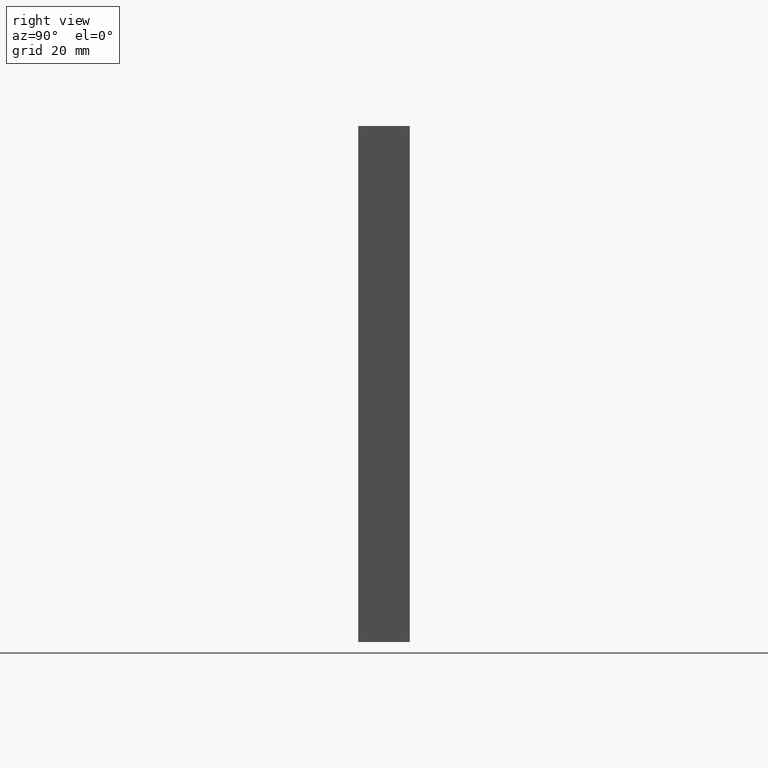
[diagram: clean part render]
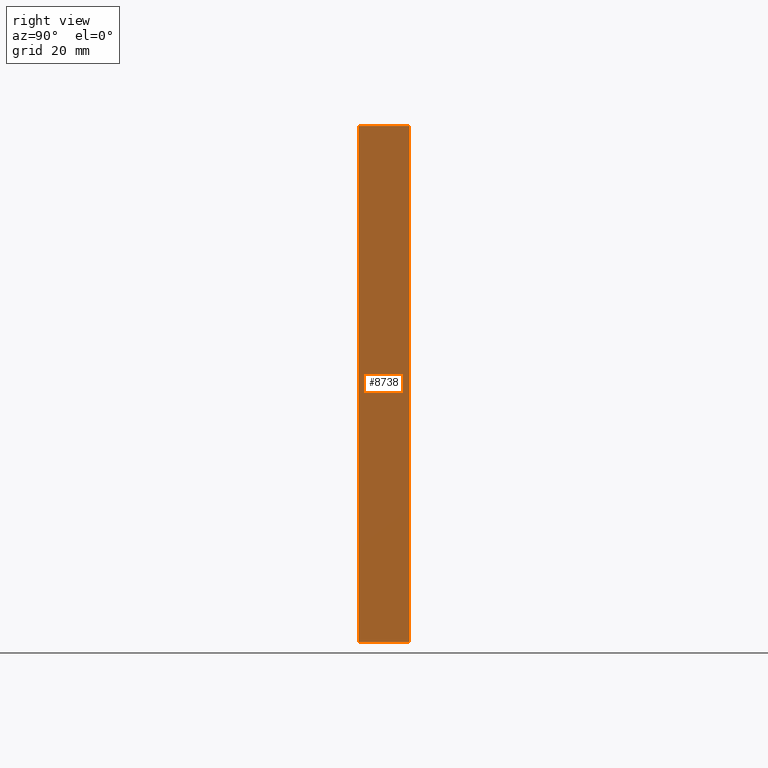
[diagram: same view with one face highlighted and labeled with its STEP entity id]
A machine part, right view. The second image highlights one B-rep face of the part: STEP entity #8738.
In plain terms, the highlighted planar face has unit normal (-1, 0, 0).
Its self-contained STEP definition (entity closure, byte-faithful):
#14 = EDGE_CURVE ( 'NONE', #11921, #2010, #2054, .T. ) ;
#786 = CARTESIAN_POINT ( 'NONE',  ( 74.99999999999998579, 0.000000000000000000, -74.99999999999998579 ) ) ;
#825 = CARTESIAN_POINT ( 'NONE',  ( 74.99999999999998579, 15.00000000000000000, -74.99999999999998579 ) ) ;
#1394 = VECTOR ( 'NONE', #3537, 1000.000000000000000 ) ;
#1662 = VECTOR ( 'NONE', #13715, 1000.000000000000000 ) ;
#1827 = CARTESIAN_POINT ( 'NONE',  ( 75.00000000000001421, 0.000000000000000000, 75.00000000000001421 ) ) ;
#2010 = VERTEX_POINT ( 'NONE', #3729 ) ;
#2054 = LINE ( 'NONE', #10053, #1394 ) ;
#2253 = ORIENTED_EDGE ( 'NONE', *, *, #14, .F. ) ;
#2925 = CARTESIAN_POINT ( 'NONE',  ( 75.00000000000001421, 15.00000000000000000, 75.00000000000001421 ) ) ;
#3126 = LINE ( 'NONE', #14024, #5332 ) ;
#3537 = DIRECTION ( 'NONE',  ( -0.000000000000000000, -1.000000000000000000, -0.000000000000000000 ) ) ;
#3729 = CARTESIAN_POINT ( 'NONE',  ( 74.99999999999998579, 0.000000000000000000, -74.99999999999998579 ) ) ;
#4013 = LINE ( 'NONE', #786, #10668 ) ;
#4538 = LINE ( 'NONE', #6061, #1662 ) ;
#5332 = VECTOR ( 'NONE', #6468, 1000.000000000000000 ) ;
#6061 = CARTESIAN_POINT ( 'NONE',  ( 74.99999999999998579, 15.00000000000000000, -74.99999999999998579 ) ) ;
#6097 = CARTESIAN_POINT ( 'NONE',  ( 74.99999999999998579, 15.00000000000000000, -74.99999999999998579 ) ) ;
#6207 = DIRECTION ( 'NONE',  ( -1.850371707708594316E-16, -0.000000000000000000, -1.000000000000000000 ) ) ;
#6468 = DIRECTION ( 'NONE',  ( -0.000000000000000000, -1.000000000000000000, -0.000000000000000000 ) ) ;
#7151 = AXIS2_PLACEMENT_3D ( 'NONE', #6097, #13700, #9330 ) ;
#7410 = ORIENTED_EDGE ( 'NONE', *, *, #12579, .T. ) ;
#7883 = ORIENTED_EDGE ( 'NONE', *, *, #9572, .T. ) ;
#8276 = PLANE ( 'NONE',  #7151 ) ;
#8738 = ADVANCED_FACE ( 'NONE', ( #13514 ), #8276, .F. ) ;
#9087 = VERTEX_POINT ( 'NONE', #1827 ) ;
#9330 = DIRECTION ( 'NONE',  ( 1.850371707708594563E-16, 0.000000000000000000, 1.000000000000000000 ) ) ;
#9572 = EDGE_CURVE ( 'NONE', #9087, #2010, #4013, .T. ) ;
#9621 = EDGE_CURVE ( 'NONE', #12916, #11921, #4538, .T. ) ;
#10053 = CARTESIAN_POINT ( 'NONE',  ( 74.99999999999998579, 15.00000000000000000, -74.99999999999998579 ) ) ;
#10668 = VECTOR ( 'NONE', #6207, 1000.000000000000000 ) ;
#11921 = VERTEX_POINT ( 'NONE', #825 ) ;
#12285 = ORIENTED_EDGE ( 'NONE', *, *, #9621, .F. ) ;
#12579 = EDGE_CURVE ( 'NONE', #12916, #9087, #3126, .T. ) ;
#12916 = VERTEX_POINT ( 'NONE', #2925 ) ;
#13443 = EDGE_LOOP ( 'NONE', ( #7883, #2253, #12285, #7410 ) ) ;
#13514 = FACE_OUTER_BOUND ( 'NONE', #13443, .T. ) ;
#13700 = DIRECTION ( 'NONE',  ( -1.000000000000000000, 0.000000000000000000, 1.850371707708594563E-16 ) ) ;
#13715 = DIRECTION ( 'NONE',  ( -1.850371707708594316E-16, -0.000000000000000000, -1.000000000000000000 ) ) ;
#14024 = CARTESIAN_POINT ( 'NONE',  ( 75.00000000000001421, 15.00000000000000000, 75.00000000000001421 ) ) ;